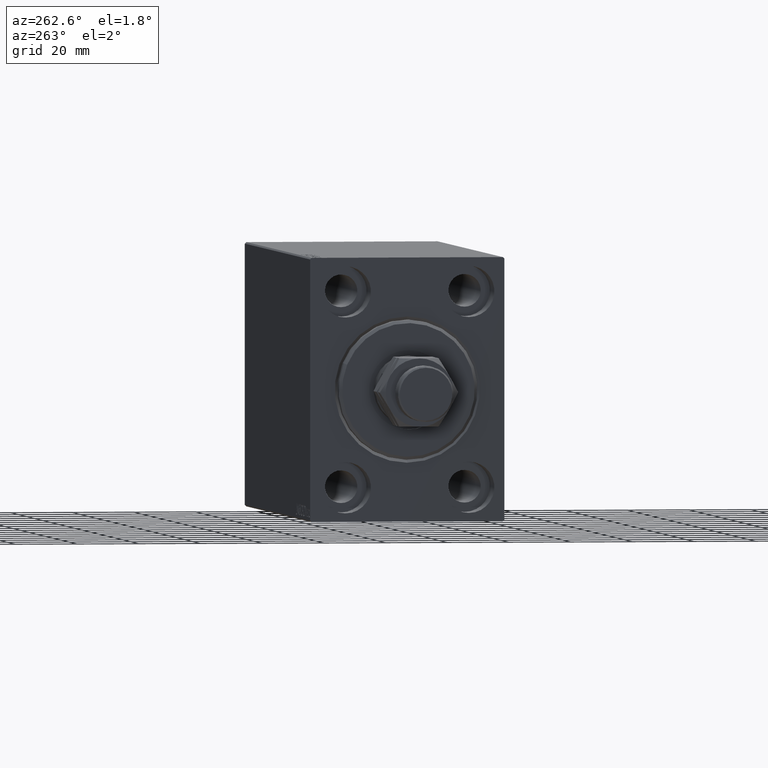
[diagram: clean part render]
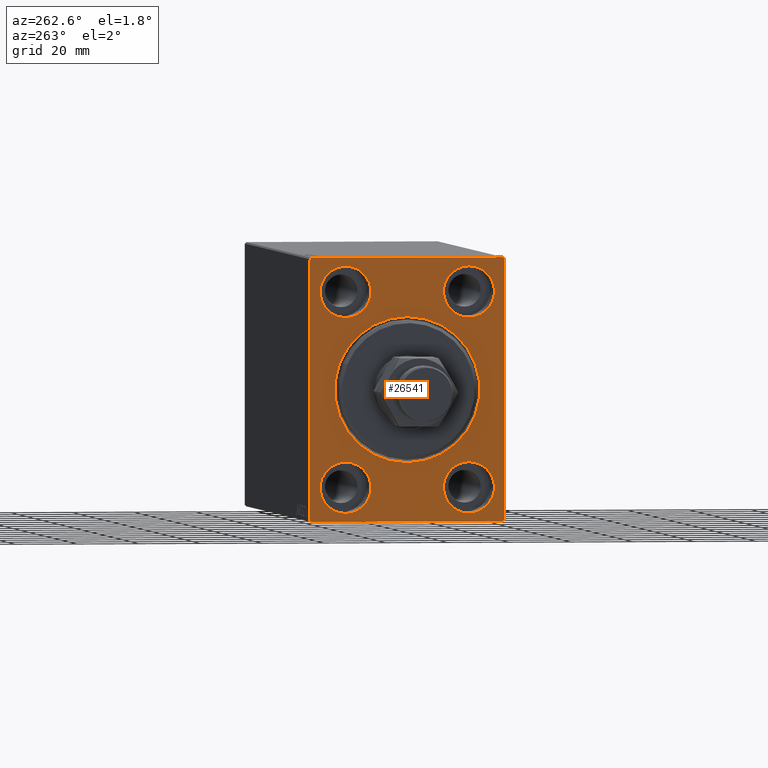
[diagram: same view with one face highlighted and labeled with its STEP entity id]
A machine part, auxiliary view. The second image highlights one B-rep face of the part: STEP entity #26541.
In plain terms, the highlighted planar face has unit normal (1, 0, 0).
Its self-contained STEP definition (entity closure, byte-faithful):
#850 = CARTESIAN_POINT ( 'NONE',  ( 0.000000000000000000, -19.99999999999999645, 23.25000000000000355 ) ) ;
#889 = CIRCLE ( 'NONE', #15549, 8.249999999999992895 ) ;
#982 = CARTESIAN_POINT ( 'NONE',  ( 0.000000000000000000, 31.50000000000001421, -42.00000000000000711 ) ) ;
#1366 = CARTESIAN_POINT ( 'NONE',  ( 0.000000000000000000, -31.50000000000000000, 41.99999999999999289 ) ) ;
#1390 = CIRCLE ( 'NONE', #5072, 8.249999999999992895 ) ;
#1644 = CARTESIAN_POINT ( 'NONE',  ( 0.000000000000000000, -31.50000000000000000, 41.99999999999999289 ) ) ;
#1655 = EDGE_CURVE ( 'NONE', #26164, #30786, #18755, .T. ) ;
#2291 = CARTESIAN_POINT ( 'NONE',  ( 0.000000000000000000, 31.00000000000000000, 42.50000000000000711 ) ) ;
#2737 = CIRCLE ( 'NONE', #25486, 8.250000000000000000 ) ;
#2785 = EDGE_LOOP ( 'NONE', ( #26258, #24115, #43178, #35640, #29882, #29821, #18871, #37404 ) ) ;
#3071 = CARTESIAN_POINT ( 'NONE',  ( 0.000000000000000000, 31.00000000000001421, -42.50000000000000711 ) ) ;
#3162 = CIRCLE ( 'NONE', #44211, 23.49999999999998934 ) ;
#3373 = CARTESIAN_POINT ( 'NONE',  ( 0.000000000000000000, 2.877919977996279137E-15, -23.49999999999998934 ) ) ;
#3723 = DIRECTION ( 'NONE',  ( 1.000000000000000000, 0.000000000000000000, 0.000000000000000000 ) ) ;
#3875 = EDGE_CURVE ( 'NONE', #16578, #33181, #31267, .T. ) ;
#4055 = ORIENTED_EDGE ( 'NONE', *, *, #40494, .F. ) ;
#4097 = AXIS2_PLACEMENT_3D ( 'NONE', #22111, #39758, #36082 ) ;
#4718 = EDGE_CURVE ( 'NONE', #36163, #41723, #34917, .T. ) ;
#4968 = EDGE_CURVE ( 'NONE', #28456, #29427, #7846, .T. ) ;
#5072 = AXIS2_PLACEMENT_3D ( 'NONE', #10645, #31984, #35187 ) ;
#5505 = VECTOR ( 'NONE', #25006, 1000.000000000000000 ) ;
#5510 = CARTESIAN_POINT ( 'NONE',  ( 0.000000000000000000, 20.00000000000000355, 31.50000000000000000 ) ) ;
#5681 = VECTOR ( 'NONE', #14145, 1000.000000000000114 ) ;
#6111 = EDGE_CURVE ( 'NONE', #30786, #26164, #25476, .T. ) ;
#6256 = VERTEX_POINT ( 'NONE', #40290 ) ;
#6368 = EDGE_CURVE ( 'NONE', #28456, #28785, #34751, .T. ) ;
#7366 = CARTESIAN_POINT ( 'NONE',  ( 0.000000000000000000, 31.00000000000000000, 42.50000000000000711 ) ) ;
#7846 = LINE ( 'NONE', #1644, #39343 ) ;
#8078 = CIRCLE ( 'NONE', #33717, 8.249999999999992895 ) ;
#8359 = ORIENTED_EDGE ( 'NONE', *, *, #34954, .F. ) ;
#8737 = LINE ( 'NONE', #19058, #26307 ) ;
#8797 = DIRECTION ( 'NONE',  ( -1.000000000000000000, 0.000000000000000000, 0.000000000000000000 ) ) ;
#9418 = LINE ( 'NONE', #27329, #39469 ) ;
#10028 = CARTESIAN_POINT ( 'NONE',  ( 0.000000000000000000, 19.99999999999999645, -31.49999999999999289 ) ) ;
#10607 = ORIENTED_EDGE ( 'NONE', *, *, #31647, .F. ) ;
#10610 = FACE_OUTER_BOUND ( 'NONE', #2785, .T. ) ;
#10645 = CARTESIAN_POINT ( 'NONE',  ( 0.000000000000000000, -19.99999999999999645, 31.50000000000000000 ) ) ;
#10836 = FACE_BOUND ( 'NONE', #23037, .T. ) ;
#11635 = DIRECTION ( 'NONE',  ( 0.000000000000000000, -0.7071067811865474617, -0.7071067811865474617 ) ) ;
#11947 = CARTESIAN_POINT ( 'NONE',  ( 0.000000000000000000, 19.99999999999999645, -39.74999999999999289 ) ) ;
#12270 = VECTOR ( 'NONE', #41646, 1000.000000000000000 ) ;
#12477 = ORIENTED_EDGE ( 'NONE', *, *, #1655, .F. ) ;
#12670 = DIRECTION ( 'NONE',  ( 1.000000000000000000, 0.000000000000000000, 0.000000000000000000 ) ) ;
#12842 = LINE ( 'NONE', #2291, #5681 ) ;
#12855 = CARTESIAN_POINT ( 'NONE',  ( 0.000000000000000000, 31.50000000000000000, 42.00000000000000711 ) ) ;
#13302 = CARTESIAN_POINT ( 'NONE',  ( 0.000000000000000000, -20.00000000000000355, -23.24999999999999289 ) ) ;
#13469 = DIRECTION ( 'NONE',  ( 0.000000000000000000, 0.000000000000000000, 1.000000000000000000 ) ) ;
#14057 = PLANE ( 'NONE',  #17511 ) ;
#14145 = DIRECTION ( 'NONE',  ( -0.000000000000000000, 0.7071067811865474617, -0.7071067811865474617 ) ) ;
#14437 = LINE ( 'NONE', #28452, #5505 ) ;
#14626 = CARTESIAN_POINT ( 'NONE',  ( 0.000000000000000000, -20.00000000000000355, -39.74999999999999289 ) ) ;
#15151 = DIRECTION ( 'NONE',  ( -0.000000000000000000, -0.7071067811865474617, 0.7071067811865474617 ) ) ;
#15318 = VECTOR ( 'NONE', #20251, 1000.000000000000000 ) ;
#15378 = CARTESIAN_POINT ( 'NONE',  ( 0.000000000000000000, -31.00000000000000000, 42.49999999999999289 ) ) ;
#15458 = CARTESIAN_POINT ( 'NONE',  ( 0.000000000000000000, -19.99999999999999645, 31.50000000000000000 ) ) ;
#15549 = AXIS2_PLACEMENT_3D ( 'NONE', #5510, #22267, #36238 ) ;
#15915 = DIRECTION ( 'NONE',  ( 0.000000000000000000, 0.000000000000000000, -1.000000000000000000 ) ) ;
#16274 = DIRECTION ( 'NONE',  ( 0.000000000000000000, 0.000000000000000000, 1.000000000000000000 ) ) ;
#16446 = DIRECTION ( 'NONE',  ( -1.000000000000000000, 0.000000000000000000, 0.000000000000000000 ) ) ;
#16552 = DIRECTION ( 'NONE',  ( 0.000000000000000000, 0.000000000000000000, -1.000000000000000000 ) ) ;
#16578 = VERTEX_POINT ( 'NONE', #3373 ) ;
#16858 = AXIS2_PLACEMENT_3D ( 'NONE', #18648, #8797, #22799 ) ;
#16908 = VERTEX_POINT ( 'NONE', #17036 ) ;
#17036 = CARTESIAN_POINT ( 'NONE',  ( 0.000000000000000000, 20.00000000000000355, 23.25000000000000355 ) ) ;
#17346 = EDGE_CURVE ( 'NONE', #41044, #42494, #14437, .T. ) ;
#17511 = AXIS2_PLACEMENT_3D ( 'NONE', #41601, #3723, #17730 ) ;
#17729 = EDGE_LOOP ( 'NONE', ( #41085, #28576 ) ) ;
#17730 = DIRECTION ( 'NONE',  ( 0.000000000000000000, 0.000000000000000000, -1.000000000000000000 ) ) ;
#18294 = LINE ( 'NONE', #39388, #23127 ) ;
#18640 = EDGE_CURVE ( 'NONE', #30642, #42494, #18294, .T. ) ;
#18648 = CARTESIAN_POINT ( 'NONE',  ( 0.000000000000000000, 20.00000000000000355, 31.50000000000000000 ) ) ;
#18755 = CIRCLE ( 'NONE', #4097, 8.250000000000000000 ) ;
#18871 = ORIENTED_EDGE ( 'NONE', *, *, #17346, .F. ) ;
#19058 = CARTESIAN_POINT ( 'NONE',  ( 0.000000000000000000, -31.00000000000000000, -42.50000000000000711 ) ) ;
#19557 = ORIENTED_EDGE ( 'NONE', *, *, #4718, .F. ) ;
#19753 = DIRECTION ( 'NONE',  ( 0.000000000000000000, -1.000000000000000000, -2.202823461557850341E-16 ) ) ;
#19812 = CARTESIAN_POINT ( 'NONE',  ( 0.000000000000000000, 0.000000000000000000, 0.000000000000000000 ) ) ;
#20251 = DIRECTION ( 'NONE',  ( 0.000000000000000000, -1.632680918566406300E-16, 1.000000000000000000 ) ) ;
#20298 = AXIS2_PLACEMENT_3D ( 'NONE', #37013, #43924, #33802 ) ;
#21248 = EDGE_CURVE ( 'NONE', #30181, #36999, #12842, .T. ) ;
#22111 = CARTESIAN_POINT ( 'NONE',  ( 0.000000000000000000, -20.00000000000000355, -31.49999999999999289 ) ) ;
#22267 = DIRECTION ( 'NONE',  ( -1.000000000000000000, 0.000000000000000000, 0.000000000000000000 ) ) ;
#22466 = AXIS2_PLACEMENT_3D ( 'NONE', #19812, #43462, #15915 ) ;
#22799 = DIRECTION ( 'NONE',  ( 0.000000000000000000, 0.000000000000000000, 1.000000000000000000 ) ) ;
#23037 = EDGE_LOOP ( 'NONE', ( #8359, #10607 ) ) ;
#23127 = VECTOR ( 'NONE', #11635, 1000.000000000000114 ) ;
#23265 = EDGE_CURVE ( 'NONE', #41723, #36163, #2737, .T. ) ;
#23907 = CARTESIAN_POINT ( 'NONE',  ( 0.000000000000000000, 0.000000000000000000, 0.000000000000000000 ) ) ;
#24115 = ORIENTED_EDGE ( 'NONE', *, *, #4968, .T. ) ;
#24181 = FACE_BOUND ( 'NONE', #35937, .T. ) ;
#25006 = DIRECTION ( 'NONE',  ( 0.000000000000000000, 1.000000000000000000, 0.000000000000000000 ) ) ;
#25476 = CIRCLE ( 'NONE', #38612, 8.250000000000000000 ) ;
#25486 = AXIS2_PLACEMENT_3D ( 'NONE', #10028, #16446, #13469 ) ;
#26150 = CARTESIAN_POINT ( 'NONE',  ( 0.000000000000000000, 0.000000000000000000, 23.49999999999998934 ) ) ;
#26164 = VERTEX_POINT ( 'NONE', #14626 ) ;
#26247 = DIRECTION ( 'NONE',  ( -1.000000000000000000, 0.000000000000000000, 0.000000000000000000 ) ) ;
#26258 = ORIENTED_EDGE ( 'NONE', *, *, #6368, .F. ) ;
#26307 = VECTOR ( 'NONE', #15151, 1000.000000000000114 ) ;
#26541 = ADVANCED_FACE ( 'NONE', ( #31279, #31730, #10836, #24181, #41828, #10610 ), #14057, .F. ) ;
#27329 = CARTESIAN_POINT ( 'NONE',  ( 0.000000000000000000, 31.50000000000000000, 42.50000000000000711 ) ) ;
#27378 = LINE ( 'NONE', #30583, #15318 ) ;
#28452 = CARTESIAN_POINT ( 'NONE',  ( 0.000000000000000000, -31.50000000000000000, -42.50000000000000711 ) ) ;
#28456 = VERTEX_POINT ( 'NONE', #1366 ) ;
#28576 = ORIENTED_EDGE ( 'NONE', *, *, #3875, .T. ) ;
#28785 = VERTEX_POINT ( 'NONE', #35672 ) ;
#29427 = VERTEX_POINT ( 'NONE', #15378 ) ;
#29821 = ORIENTED_EDGE ( 'NONE', *, *, #18640, .T. ) ;
#29882 = ORIENTED_EDGE ( 'NONE', *, *, #31800, .F. ) ;
#30181 = VERTEX_POINT ( 'NONE', #7366 ) ;
#30306 = EDGE_CURVE ( 'NONE', #41044, #28785, #8737, .T. ) ;
#30583 = CARTESIAN_POINT ( 'NONE',  ( 0.000000000000000000, 31.50000000000001421, -42.50000000000000711 ) ) ;
#30642 = VERTEX_POINT ( 'NONE', #982 ) ;
#30786 = VERTEX_POINT ( 'NONE', #13302 ) ;
#30793 = CIRCLE ( 'NONE', #16858, 8.249999999999992895 ) ;
#31267 = CIRCLE ( 'NONE', #22466, 23.49999999999998934 ) ;
#31279 = FACE_BOUND ( 'NONE', #17729, .T. ) ;
#31647 = EDGE_CURVE ( 'NONE', #44761, #31953, #1390, .T. ) ;
#31730 = FACE_BOUND ( 'NONE', #32223, .T. ) ;
#31800 = EDGE_CURVE ( 'NONE', #30642, #36999, #27378, .T. ) ;
#31953 = VERTEX_POINT ( 'NONE', #39933 ) ;
#31984 = DIRECTION ( 'NONE',  ( -1.000000000000000000, 0.000000000000000000, 0.000000000000000000 ) ) ;
#32005 = EDGE_CURVE ( 'NONE', #30181, #29427, #9418, .T. ) ;
#32223 = EDGE_LOOP ( 'NONE', ( #40192, #19557 ) ) ;
#32233 = ORIENTED_EDGE ( 'NONE', *, *, #6111, .F. ) ;
#33081 = DIRECTION ( 'NONE',  ( -0.000000000000000000, 0.7071067811865474617, 0.7071067811865474617 ) ) ;
#33088 = CARTESIAN_POINT ( 'NONE',  ( 0.000000000000000000, 19.99999999999999645, -23.24999999999999289 ) ) ;
#33181 = VERTEX_POINT ( 'NONE', #26150 ) ;
#33717 = AXIS2_PLACEMENT_3D ( 'NONE', #15458, #26247, #40223 ) ;
#33802 = DIRECTION ( 'NONE',  ( 0.000000000000000000, 0.000000000000000000, 1.000000000000000000 ) ) ;
#34028 = ORIENTED_EDGE ( 'NONE', *, *, #34120, .F. ) ;
#34120 = EDGE_CURVE ( 'NONE', #6256, #16908, #30793, .T. ) ;
#34751 = LINE ( 'NONE', #44654, #12270 ) ;
#34917 = CIRCLE ( 'NONE', #20298, 8.250000000000000000 ) ;
#34954 = EDGE_CURVE ( 'NONE', #31953, #44761, #8078, .T. ) ;
#35187 = DIRECTION ( 'NONE',  ( 0.000000000000000000, 0.000000000000000000, 1.000000000000000000 ) ) ;
#35626 = CARTESIAN_POINT ( 'NONE',  ( 0.000000000000000000, -31.00000000000000000, -42.50000000000000711 ) ) ;
#35640 = ORIENTED_EDGE ( 'NONE', *, *, #21248, .T. ) ;
#35672 = CARTESIAN_POINT ( 'NONE',  ( 0.000000000000000000, -31.50000000000000000, -42.00000000000000711 ) ) ;
#35937 = EDGE_LOOP ( 'NONE', ( #34028, #4055 ) ) ;
#36082 = DIRECTION ( 'NONE',  ( 0.000000000000000000, 0.000000000000000000, 1.000000000000000000 ) ) ;
#36163 = VERTEX_POINT ( 'NONE', #11947 ) ;
#36238 = DIRECTION ( 'NONE',  ( 0.000000000000000000, 0.000000000000000000, 1.000000000000000000 ) ) ;
#36915 = DIRECTION ( 'NONE',  ( -1.000000000000000000, 0.000000000000000000, 0.000000000000000000 ) ) ;
#36999 = VERTEX_POINT ( 'NONE', #12855 ) ;
#37013 = CARTESIAN_POINT ( 'NONE',  ( 0.000000000000000000, 19.99999999999999645, -31.49999999999999289 ) ) ;
#37404 = ORIENTED_EDGE ( 'NONE', *, *, #30306, .T. ) ;
#38612 = AXIS2_PLACEMENT_3D ( 'NONE', #43595, #36915, #16274 ) ;
#39343 = VECTOR ( 'NONE', #33081, 1000.000000000000114 ) ;
#39388 = CARTESIAN_POINT ( 'NONE',  ( 0.000000000000000000, 31.50000000000001421, -42.00000000000000711 ) ) ;
#39469 = VECTOR ( 'NONE', #19753, 1000.000000000000000 ) ;
#39758 = DIRECTION ( 'NONE',  ( -1.000000000000000000, 0.000000000000000000, 0.000000000000000000 ) ) ;
#39933 = CARTESIAN_POINT ( 'NONE',  ( 0.000000000000000000, -19.99999999999999645, 39.74999999999999289 ) ) ;
#40192 = ORIENTED_EDGE ( 'NONE', *, *, #23265, .F. ) ;
#40223 = DIRECTION ( 'NONE',  ( 0.000000000000000000, 0.000000000000000000, 1.000000000000000000 ) ) ;
#40290 = CARTESIAN_POINT ( 'NONE',  ( 0.000000000000000000, 20.00000000000000355, 39.74999999999999289 ) ) ;
#40494 = EDGE_CURVE ( 'NONE', #16908, #6256, #889, .T. ) ;
#41044 = VERTEX_POINT ( 'NONE', #35626 ) ;
#41085 = ORIENTED_EDGE ( 'NONE', *, *, #42763, .T. ) ;
#41601 = CARTESIAN_POINT ( 'NONE',  ( 0.000000000000000000, 0.000000000000000000, 0.000000000000000000 ) ) ;
#41646 = DIRECTION ( 'NONE',  ( 0.000000000000000000, 0.000000000000000000, -1.000000000000000000 ) ) ;
#41723 = VERTEX_POINT ( 'NONE', #33088 ) ;
#41828 = FACE_BOUND ( 'NONE', #41988, .T. ) ;
#41988 = EDGE_LOOP ( 'NONE', ( #32233, #12477 ) ) ;
#42494 = VERTEX_POINT ( 'NONE', #3071 ) ;
#42763 = EDGE_CURVE ( 'NONE', #33181, #16578, #3162, .T. ) ;
#43178 = ORIENTED_EDGE ( 'NONE', *, *, #32005, .F. ) ;
#43462 = DIRECTION ( 'NONE',  ( 1.000000000000000000, 0.000000000000000000, 0.000000000000000000 ) ) ;
#43595 = CARTESIAN_POINT ( 'NONE',  ( 0.000000000000000000, -20.00000000000000355, -31.49999999999999289 ) ) ;
#43924 = DIRECTION ( 'NONE',  ( -1.000000000000000000, 0.000000000000000000, 0.000000000000000000 ) ) ;
#44211 = AXIS2_PLACEMENT_3D ( 'NONE', #23907, #12670, #16552 ) ;
#44654 = CARTESIAN_POINT ( 'NONE',  ( 0.000000000000000000, -31.50000000000000000, 42.49999999999999289 ) ) ;
#44761 = VERTEX_POINT ( 'NONE', #850 ) ;